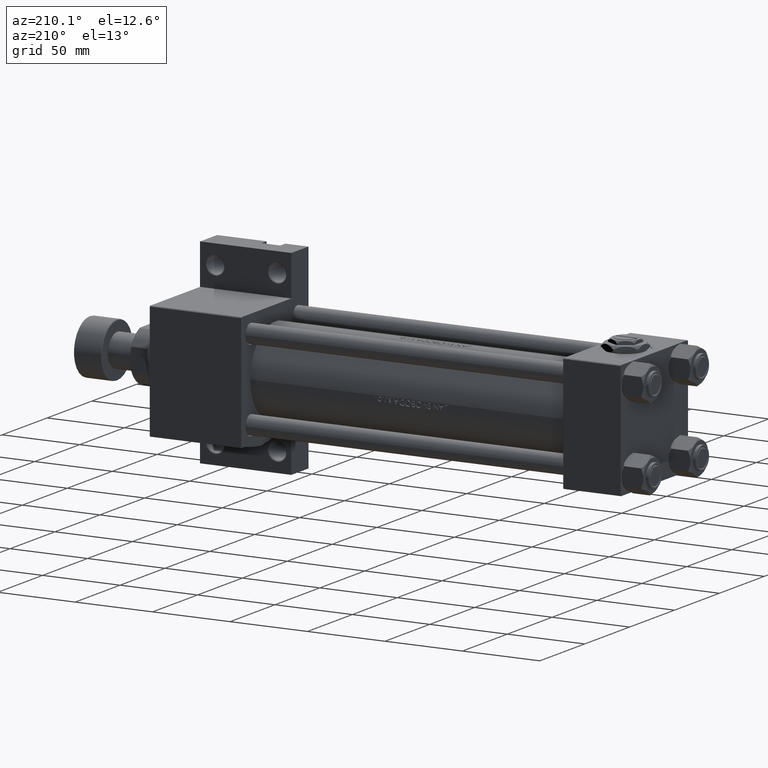
[diagram: clean part render]
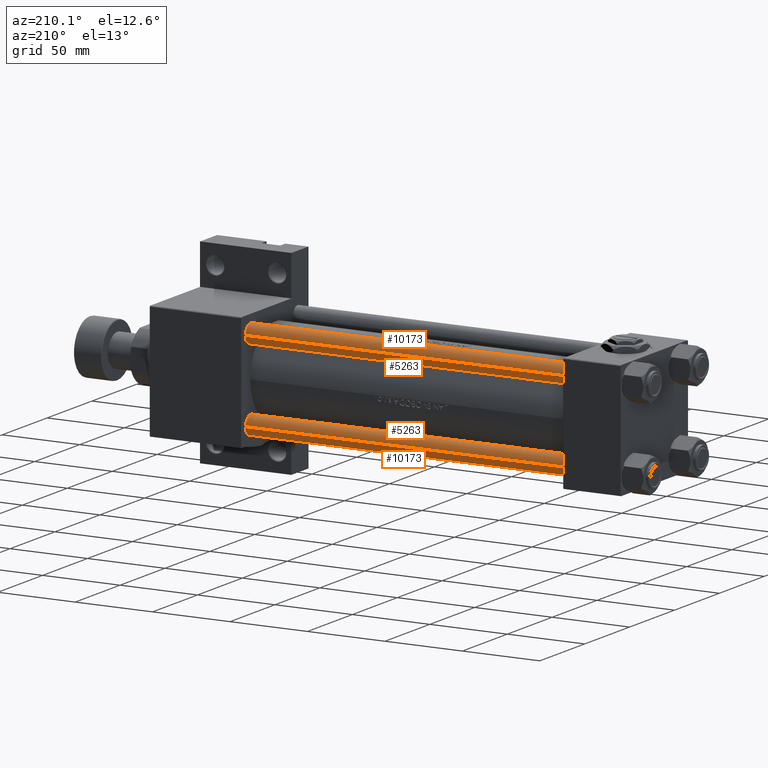
[diagram: same view with one multi-face feature highlighted, each face labeled with its STEP entity id]
A machine part, auxiliary view. The highlighted faces form ONE feature: a constant-radius fillet chain: 4 tangent blend faces with common blend radius 6 mm. The faces share edges in the B-rep.
Their STEP definitions:
[1] entity #5263 (Cylinder):
#60 = EDGE_CURVE ( 'NONE', #27662, #5077, #37429, .T. ) ;
#2040 = EDGE_CURVE ( 'NONE', #27662, #37582, #33221, .T. ) ;
#4856 = ORIENTED_EDGE ( 'NONE', *, *, #60, .T. ) ;
#5077 = VERTEX_POINT ( 'NONE', #40153 ) ;
#5263 = ADVANCED_FACE ( 'NONE', ( #17749 ), #47609, .T. ) ;
#5622 = CARTESIAN_POINT ( 'NONE',  ( 0.000000000000000000, 0.000000000000000000, 273.5000000000000000 ) ) ;
#5989 = CARTESIAN_POINT ( 'NONE',  ( 0.000000000000000000, 0.000000000000000000, 274.0000000000000000 ) ) ;
#6721 = EDGE_CURVE ( 'NONE', #5077, #43821, #21051, .T. ) ;
#8314 = CARTESIAN_POINT ( 'NONE',  ( 6.000000000000000888, 7.347880794884120722E-16, 0.5000000000000559552 ) ) ;
#13534 = DIRECTION ( 'NONE',  ( -0.000000000000000000, -0.000000000000000000, -1.000000000000000000 ) ) ;
#14018 = CARTESIAN_POINT ( 'NONE',  ( -6.000000000000000888, 0.000000000000000000, 273.5000000000000000 ) ) ;
#17019 = DIRECTION ( 'NONE',  ( -1.000000000000000000, 0.000000000000000000, 0.000000000000000000 ) ) ;
#17049 = CARTESIAN_POINT ( 'NONE',  ( 0.000000000000000000, 0.000000000000000000, 0.5000000000000559552 ) ) ;
#17622 = DIRECTION ( 'NONE',  ( 0.000000000000000000, 0.000000000000000000, -1.000000000000000000 ) ) ;
#17749 = FACE_OUTER_BOUND ( 'NONE', #23781, .T. ) ;
#19854 = VECTOR ( 'NONE', #44031, 1000.000000000000000 ) ;
#20549 = CARTESIAN_POINT ( 'NONE',  ( 6.000000000000000888, 7.347880794884120722E-16, 274.0000000000000000 ) ) ;
#21051 = LINE ( 'NONE', #20549, #33500 ) ;
#21195 = EDGE_CURVE ( 'NONE', #43821, #37582, #37849, .T. ) ;
#23781 = EDGE_LOOP ( 'NONE', ( #4856, #36555, #30182, #44032 ) ) ;
#27460 = AXIS2_PLACEMENT_3D ( 'NONE', #17049, #32335, #47636 ) ;
#27662 = VERTEX_POINT ( 'NONE', #14018 ) ;
#30182 = ORIENTED_EDGE ( 'NONE', *, *, #21195, .T. ) ;
#31987 = AXIS2_PLACEMENT_3D ( 'NONE', #5989, #40091, #17019 ) ;
#32335 = DIRECTION ( 'NONE',  ( -0.000000000000000000, -0.000000000000000000, 1.000000000000000000 ) ) ;
#32658 = DIRECTION ( 'NONE',  ( 1.000000000000000000, 0.000000000000000000, 0.000000000000000000 ) ) ;
#32978 = CARTESIAN_POINT ( 'NONE',  ( -6.000000000000000888, 0.000000000000000000, 274.0000000000000000 ) ) ;
#33221 = LINE ( 'NONE', #32978, #19854 ) ;
#33500 = VECTOR ( 'NONE', #13534, 1000.000000000000000 ) ;
#36555 = ORIENTED_EDGE ( 'NONE', *, *, #6721, .T. ) ;
#37429 = CIRCLE ( 'NONE', #41391, 6.000000000000000888 ) ;
#37582 = VERTEX_POINT ( 'NONE', #41830 ) ;
#37849 = CIRCLE ( 'NONE', #27460, 6.000000000000000888 ) ;
#40091 = DIRECTION ( 'NONE',  ( -0.000000000000000000, -0.000000000000000000, -1.000000000000000000 ) ) ;
#40153 = CARTESIAN_POINT ( 'NONE',  ( 6.000000000000000888, 7.347880794884120722E-16, 273.5000000000000000 ) ) ;
#41391 = AXIS2_PLACEMENT_3D ( 'NONE', #5622, #17622, #32658 ) ;
#41830 = CARTESIAN_POINT ( 'NONE',  ( -6.000000000000000888, 0.000000000000000000, 0.5000000000000559552 ) ) ;
#43821 = VERTEX_POINT ( 'NONE', #8314 ) ;
#44031 = DIRECTION ( 'NONE',  ( -0.000000000000000000, -0.000000000000000000, -1.000000000000000000 ) ) ;
#44032 = ORIENTED_EDGE ( 'NONE', *, *, #2040, .F. ) ;
#47609 = CYLINDRICAL_SURFACE ( 'NONE', #31987, 6.000000000000000888 ) ;
#47636 = DIRECTION ( 'NONE',  ( 1.000000000000000000, 0.000000000000000000, 0.000000000000000000 ) ) ;
[2] entity #10173 (Cylinder):
#1555 = ORIENTED_EDGE ( 'NONE', *, *, #42930, .T. ) ;
#1619 = AXIS2_PLACEMENT_3D ( 'NONE', #12316, #27582, #40378 ) ;
#2040 = EDGE_CURVE ( 'NONE', #27662, #37582, #33221, .T. ) ;
#3882 = CARTESIAN_POINT ( 'NONE',  ( 0.000000000000000000, 0.000000000000000000, 0.5000000000000559552 ) ) ;
#3945 = ORIENTED_EDGE ( 'NONE', *, *, #2040, .T. ) ;
#4540 = FACE_OUTER_BOUND ( 'NONE', #46159, .T. ) ;
#5077 = VERTEX_POINT ( 'NONE', #40153 ) ;
#6721 = EDGE_CURVE ( 'NONE', #5077, #43821, #21051, .T. ) ;
#7981 = ORIENTED_EDGE ( 'NONE', *, *, #6721, .F. ) ;
#8314 = CARTESIAN_POINT ( 'NONE',  ( 6.000000000000000888, 7.347880794884120722E-16, 0.5000000000000559552 ) ) ;
#10173 = ADVANCED_FACE ( 'NONE', ( #4540 ), #19821, .T. ) ;
#12316 = CARTESIAN_POINT ( 'NONE',  ( 0.000000000000000000, 0.000000000000000000, 274.0000000000000000 ) ) ;
#13339 = CIRCLE ( 'NONE', #41342, 6.000000000000000888 ) ;
#13534 = DIRECTION ( 'NONE',  ( -0.000000000000000000, -0.000000000000000000, -1.000000000000000000 ) ) ;
#14018 = CARTESIAN_POINT ( 'NONE',  ( -6.000000000000000888, 0.000000000000000000, 273.5000000000000000 ) ) ;
#14536 = DIRECTION ( 'NONE',  ( 1.000000000000000000, 0.000000000000000000, 0.000000000000000000 ) ) ;
#15015 = CARTESIAN_POINT ( 'NONE',  ( 0.000000000000000000, 0.000000000000000000, 273.5000000000000000 ) ) ;
#19821 = CYLINDRICAL_SURFACE ( 'NONE', #1619, 6.000000000000000888 ) ;
#19854 = VECTOR ( 'NONE', #44031, 1000.000000000000000 ) ;
#20549 = CARTESIAN_POINT ( 'NONE',  ( 6.000000000000000888, 7.347880794884120722E-16, 274.0000000000000000 ) ) ;
#21051 = LINE ( 'NONE', #20549, #33500 ) ;
#26428 = DIRECTION ( 'NONE',  ( -0.000000000000000000, -0.000000000000000000, 1.000000000000000000 ) ) ;
#27180 = DIRECTION ( 'NONE',  ( 1.000000000000000000, 0.000000000000000000, 0.000000000000000000 ) ) ;
#27582 = DIRECTION ( 'NONE',  ( -0.000000000000000000, -0.000000000000000000, -1.000000000000000000 ) ) ;
#27662 = VERTEX_POINT ( 'NONE', #14018 ) ;
#32978 = CARTESIAN_POINT ( 'NONE',  ( -6.000000000000000888, 0.000000000000000000, 274.0000000000000000 ) ) ;
#33221 = LINE ( 'NONE', #32978, #19854 ) ;
#33500 = VECTOR ( 'NONE', #13534, 1000.000000000000000 ) ;
#36896 = EDGE_CURVE ( 'NONE', #37582, #43821, #13339, .T. ) ;
#37582 = VERTEX_POINT ( 'NONE', #41830 ) ;
#37589 = DIRECTION ( 'NONE',  ( 0.000000000000000000, 0.000000000000000000, -1.000000000000000000 ) ) ;
#39182 = CIRCLE ( 'NONE', #46379, 6.000000000000000888 ) ;
#40153 = CARTESIAN_POINT ( 'NONE',  ( 6.000000000000000888, 7.347880794884120722E-16, 273.5000000000000000 ) ) ;
#40378 = DIRECTION ( 'NONE',  ( -1.000000000000000000, 0.000000000000000000, 0.000000000000000000 ) ) ;
#41342 = AXIS2_PLACEMENT_3D ( 'NONE', #3882, #26428, #27180 ) ;
#41830 = CARTESIAN_POINT ( 'NONE',  ( -6.000000000000000888, 0.000000000000000000, 0.5000000000000559552 ) ) ;
#42930 = EDGE_CURVE ( 'NONE', #5077, #27662, #39182, .T. ) ;
#43821 = VERTEX_POINT ( 'NONE', #8314 ) ;
#44031 = DIRECTION ( 'NONE',  ( -0.000000000000000000, -0.000000000000000000, -1.000000000000000000 ) ) ;
#46159 = EDGE_LOOP ( 'NONE', ( #7981, #1555, #3945, #47786 ) ) ;
#46379 = AXIS2_PLACEMENT_3D ( 'NONE', #15015, #37589, #14536 ) ;
#47786 = ORIENTED_EDGE ( 'NONE', *, *, #36896, .T. ) ;
[3] entity #5263 (Cylinder):
#60 = EDGE_CURVE ( 'NONE', #27662, #5077, #37429, .T. ) ;
#2040 = EDGE_CURVE ( 'NONE', #27662, #37582, #33221, .T. ) ;
#4856 = ORIENTED_EDGE ( 'NONE', *, *, #60, .T. ) ;
#5077 = VERTEX_POINT ( 'NONE', #40153 ) ;
#5263 = ADVANCED_FACE ( 'NONE', ( #17749 ), #47609, .T. ) ;
#5622 = CARTESIAN_POINT ( 'NONE',  ( 0.000000000000000000, 0.000000000000000000, 273.5000000000000000 ) ) ;
#5989 = CARTESIAN_POINT ( 'NONE',  ( 0.000000000000000000, 0.000000000000000000, 274.0000000000000000 ) ) ;
#6721 = EDGE_CURVE ( 'NONE', #5077, #43821, #21051, .T. ) ;
#8314 = CARTESIAN_POINT ( 'NONE',  ( 6.000000000000000888, 7.347880794884120722E-16, 0.5000000000000559552 ) ) ;
#13534 = DIRECTION ( 'NONE',  ( -0.000000000000000000, -0.000000000000000000, -1.000000000000000000 ) ) ;
#14018 = CARTESIAN_POINT ( 'NONE',  ( -6.000000000000000888, 0.000000000000000000, 273.5000000000000000 ) ) ;
#17019 = DIRECTION ( 'NONE',  ( -1.000000000000000000, 0.000000000000000000, 0.000000000000000000 ) ) ;
#17049 = CARTESIAN_POINT ( 'NONE',  ( 0.000000000000000000, 0.000000000000000000, 0.5000000000000559552 ) ) ;
#17622 = DIRECTION ( 'NONE',  ( 0.000000000000000000, 0.000000000000000000, -1.000000000000000000 ) ) ;
#17749 = FACE_OUTER_BOUND ( 'NONE', #23781, .T. ) ;
#19854 = VECTOR ( 'NONE', #44031, 1000.000000000000000 ) ;
#20549 = CARTESIAN_POINT ( 'NONE',  ( 6.000000000000000888, 7.347880794884120722E-16, 274.0000000000000000 ) ) ;
#21051 = LINE ( 'NONE', #20549, #33500 ) ;
#21195 = EDGE_CURVE ( 'NONE', #43821, #37582, #37849, .T. ) ;
#23781 = EDGE_LOOP ( 'NONE', ( #4856, #36555, #30182, #44032 ) ) ;
#27460 = AXIS2_PLACEMENT_3D ( 'NONE', #17049, #32335, #47636 ) ;
#27662 = VERTEX_POINT ( 'NONE', #14018 ) ;
#30182 = ORIENTED_EDGE ( 'NONE', *, *, #21195, .T. ) ;
#31987 = AXIS2_PLACEMENT_3D ( 'NONE', #5989, #40091, #17019 ) ;
#32335 = DIRECTION ( 'NONE',  ( -0.000000000000000000, -0.000000000000000000, 1.000000000000000000 ) ) ;
#32658 = DIRECTION ( 'NONE',  ( 1.000000000000000000, 0.000000000000000000, 0.000000000000000000 ) ) ;
#32978 = CARTESIAN_POINT ( 'NONE',  ( -6.000000000000000888, 0.000000000000000000, 274.0000000000000000 ) ) ;
#33221 = LINE ( 'NONE', #32978, #19854 ) ;
#33500 = VECTOR ( 'NONE', #13534, 1000.000000000000000 ) ;
#36555 = ORIENTED_EDGE ( 'NONE', *, *, #6721, .T. ) ;
#37429 = CIRCLE ( 'NONE', #41391, 6.000000000000000888 ) ;
#37582 = VERTEX_POINT ( 'NONE', #41830 ) ;
#37849 = CIRCLE ( 'NONE', #27460, 6.000000000000000888 ) ;
#40091 = DIRECTION ( 'NONE',  ( -0.000000000000000000, -0.000000000000000000, -1.000000000000000000 ) ) ;
#40153 = CARTESIAN_POINT ( 'NONE',  ( 6.000000000000000888, 7.347880794884120722E-16, 273.5000000000000000 ) ) ;
#41391 = AXIS2_PLACEMENT_3D ( 'NONE', #5622, #17622, #32658 ) ;
#41830 = CARTESIAN_POINT ( 'NONE',  ( -6.000000000000000888, 0.000000000000000000, 0.5000000000000559552 ) ) ;
#43821 = VERTEX_POINT ( 'NONE', #8314 ) ;
#44031 = DIRECTION ( 'NONE',  ( -0.000000000000000000, -0.000000000000000000, -1.000000000000000000 ) ) ;
#44032 = ORIENTED_EDGE ( 'NONE', *, *, #2040, .F. ) ;
#47609 = CYLINDRICAL_SURFACE ( 'NONE', #31987, 6.000000000000000888 ) ;
#47636 = DIRECTION ( 'NONE',  ( 1.000000000000000000, 0.000000000000000000, 0.000000000000000000 ) ) ;
[4] entity #10173 (Cylinder):
#1555 = ORIENTED_EDGE ( 'NONE', *, *, #42930, .T. ) ;
#1619 = AXIS2_PLACEMENT_3D ( 'NONE', #12316, #27582, #40378 ) ;
#2040 = EDGE_CURVE ( 'NONE', #27662, #37582, #33221, .T. ) ;
#3882 = CARTESIAN_POINT ( 'NONE',  ( 0.000000000000000000, 0.000000000000000000, 0.5000000000000559552 ) ) ;
#3945 = ORIENTED_EDGE ( 'NONE', *, *, #2040, .T. ) ;
#4540 = FACE_OUTER_BOUND ( 'NONE', #46159, .T. ) ;
#5077 = VERTEX_POINT ( 'NONE', #40153 ) ;
#6721 = EDGE_CURVE ( 'NONE', #5077, #43821, #21051, .T. ) ;
#7981 = ORIENTED_EDGE ( 'NONE', *, *, #6721, .F. ) ;
#8314 = CARTESIAN_POINT ( 'NONE',  ( 6.000000000000000888, 7.347880794884120722E-16, 0.5000000000000559552 ) ) ;
#10173 = ADVANCED_FACE ( 'NONE', ( #4540 ), #19821, .T. ) ;
#12316 = CARTESIAN_POINT ( 'NONE',  ( 0.000000000000000000, 0.000000000000000000, 274.0000000000000000 ) ) ;
#13339 = CIRCLE ( 'NONE', #41342, 6.000000000000000888 ) ;
#13534 = DIRECTION ( 'NONE',  ( -0.000000000000000000, -0.000000000000000000, -1.000000000000000000 ) ) ;
#14018 = CARTESIAN_POINT ( 'NONE',  ( -6.000000000000000888, 0.000000000000000000, 273.5000000000000000 ) ) ;
#14536 = DIRECTION ( 'NONE',  ( 1.000000000000000000, 0.000000000000000000, 0.000000000000000000 ) ) ;
#15015 = CARTESIAN_POINT ( 'NONE',  ( 0.000000000000000000, 0.000000000000000000, 273.5000000000000000 ) ) ;
#19821 = CYLINDRICAL_SURFACE ( 'NONE', #1619, 6.000000000000000888 ) ;
#19854 = VECTOR ( 'NONE', #44031, 1000.000000000000000 ) ;
#20549 = CARTESIAN_POINT ( 'NONE',  ( 6.000000000000000888, 7.347880794884120722E-16, 274.0000000000000000 ) ) ;
#21051 = LINE ( 'NONE', #20549, #33500 ) ;
#26428 = DIRECTION ( 'NONE',  ( -0.000000000000000000, -0.000000000000000000, 1.000000000000000000 ) ) ;
#27180 = DIRECTION ( 'NONE',  ( 1.000000000000000000, 0.000000000000000000, 0.000000000000000000 ) ) ;
#27582 = DIRECTION ( 'NONE',  ( -0.000000000000000000, -0.000000000000000000, -1.000000000000000000 ) ) ;
#27662 = VERTEX_POINT ( 'NONE', #14018 ) ;
#32978 = CARTESIAN_POINT ( 'NONE',  ( -6.000000000000000888, 0.000000000000000000, 274.0000000000000000 ) ) ;
#33221 = LINE ( 'NONE', #32978, #19854 ) ;
#33500 = VECTOR ( 'NONE', #13534, 1000.000000000000000 ) ;
#36896 = EDGE_CURVE ( 'NONE', #37582, #43821, #13339, .T. ) ;
#37582 = VERTEX_POINT ( 'NONE', #41830 ) ;
#37589 = DIRECTION ( 'NONE',  ( 0.000000000000000000, 0.000000000000000000, -1.000000000000000000 ) ) ;
#39182 = CIRCLE ( 'NONE', #46379, 6.000000000000000888 ) ;
#40153 = CARTESIAN_POINT ( 'NONE',  ( 6.000000000000000888, 7.347880794884120722E-16, 273.5000000000000000 ) ) ;
#40378 = DIRECTION ( 'NONE',  ( -1.000000000000000000, 0.000000000000000000, 0.000000000000000000 ) ) ;
#41342 = AXIS2_PLACEMENT_3D ( 'NONE', #3882, #26428, #27180 ) ;
#41830 = CARTESIAN_POINT ( 'NONE',  ( -6.000000000000000888, 0.000000000000000000, 0.5000000000000559552 ) ) ;
#42930 = EDGE_CURVE ( 'NONE', #5077, #27662, #39182, .T. ) ;
#43821 = VERTEX_POINT ( 'NONE', #8314 ) ;
#44031 = DIRECTION ( 'NONE',  ( -0.000000000000000000, -0.000000000000000000, -1.000000000000000000 ) ) ;
#46159 = EDGE_LOOP ( 'NONE', ( #7981, #1555, #3945, #47786 ) ) ;
#46379 = AXIS2_PLACEMENT_3D ( 'NONE', #15015, #37589, #14536 ) ;
#47786 = ORIENTED_EDGE ( 'NONE', *, *, #36896, .T. ) ;